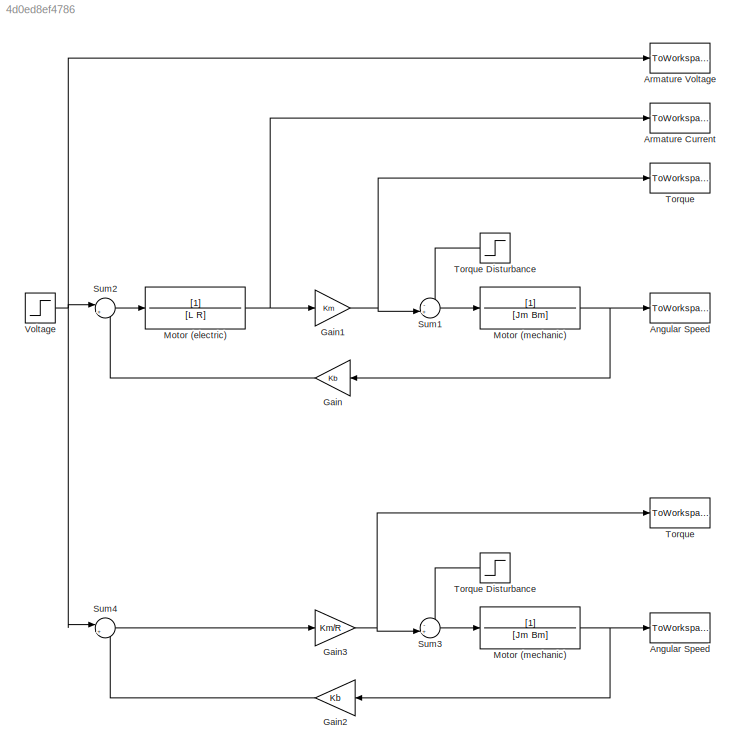
MODEL slx_4d0ed8ef4786
KIND model
CONFIG AbsTol = auto
CONFIG EnableMultiTasking = on
CONFIG FixedStep = TsSim
CONFIG InitFcn = motor_init
CONFIG MaxStep = auto
CONFIG MinStep = auto
CONFIG RelTol = 1e-6
CONFIG SampleTimeConstraint = Unconstrained
CONFIG SolverName = VariableStepAuto
CONFIG StartTime = 0.0
CONFIG StopFcn = motor_plot
CONFIG StopTime = tTot
BLOCK [ToWorkspace] Angular Speed
  MaxDataPoints = inf
  Ports = [1]
  SampleTime = -1
  VariableName = w
BLOCK [ToWorkspace] Angular Speed 
  MaxDataPoints = inf
  Ports = [1]
  SampleTime = -1
  VariableName = w1
BLOCK [ToWorkspace] Armature Current
  MaxDataPoints = inf
  Ports = [1]
  SampleTime = -1
  VariableName = i
BLOCK [ToWorkspace] Armature Voltage
  MaxDataPoints = inf
  Ports = [1]
  SampleTime = -1
  VariableName = V
BLOCK [Gain] Gain
  Gain = Kb
  NameLocation = top
BLOCK [Gain] Gain1
  Gain = Km
BLOCK [Gain] Gain2
  Gain = Kb
  NameLocation = top
BLOCK [Gain] Gain3
  Gain = Km/R
BLOCK [TransferFcn] Motor (electric)
  Denominator = [L R]
BLOCK [TransferFcn] Motor (mechanic)
  Denominator = [Jm Bm]
BLOCK [TransferFcn] Motor (mechanic) 
  Denominator = [Jm Bm]
BLOCK [Sum] Sum1
  Inputs = -+|
  Ports = [2, 1]
BLOCK [Sum] Sum2
  Inputs = |+-
  Ports = [2, 1]
BLOCK [Sum] Sum3
  Inputs = -+|
  Ports = [2, 1]
BLOCK [Sum] Sum4
  Inputs = |+-
  Ports = [2, 1]
BLOCK [ToWorkspace] Torque
  MaxDataPoints = inf
  Ports = [1]
  SampleTime = -1
  VariableName = Tq
BLOCK [ToWorkspace] Torque 
  MaxDataPoints = inf
  Ports = [1]
  SampleTime = -1
  VariableName = Tq1
BLOCK [Step] Torque Disturbance
  After = TqDist
  NameLocation = top
  SampleTime = 0
  Time = tStep
BLOCK [Step] Torque Disturbance 
  After = TqDist
  NameLocation = top
  SampleTime = 0
  Time = tStep
BLOCK [Step] Voltage
  After = VStep
  SampleTime = 0
  Time = tStep
NET Gain1:1 -> Sum1:2, Torque:1
LINE Gain2:1 -> Sum4:2
NET Gain3:1 -> Sum3:2, Torque :1
LINE Gain:1 -> Sum2:2
NET Motor (electric):1 -> Armature Current:1, Gain1:1
NET Motor (mechanic) :1 -> Angular Speed :1, Gain2:1
NET Motor (mechanic):1 -> Angular Speed:1, Gain:1
LINE Sum1:1 -> Motor (mechanic):1
LINE Sum2:1 -> Motor (electric):1
LINE Sum3:1 -> Motor (mechanic) :1
LINE Sum4:1 -> Gain3:1
LINE Torque Disturbance :1 -> Sum3:1
LINE Torque Disturbance:1 -> Sum1:1
NET Voltage:1 -> Armature Voltage:1, Sum2:1, Sum4:1
note: NET lines group one-source signal fan-out (src -> all destinations, sorted); 1:1 wires keep LINE
